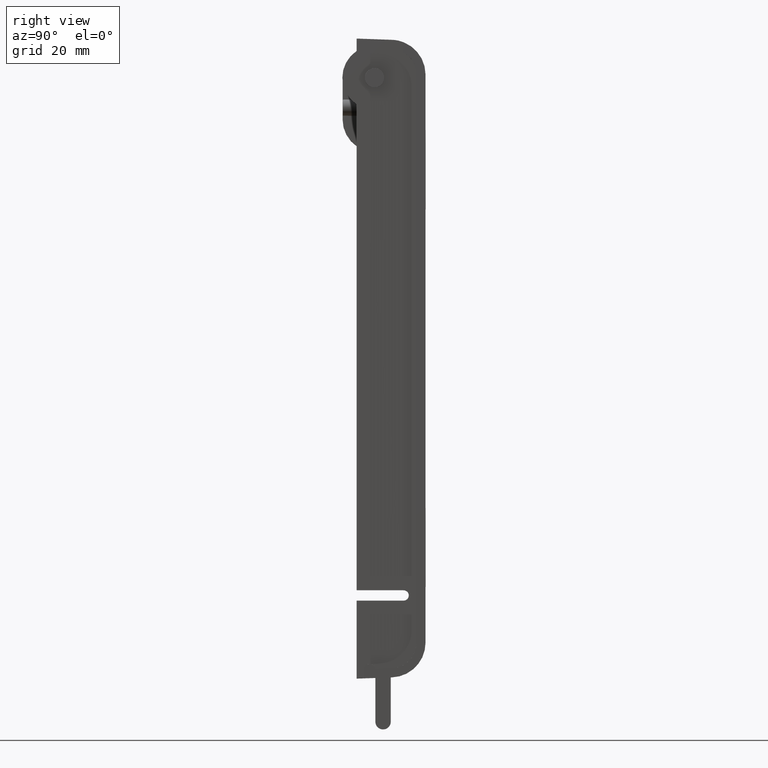
[diagram: clean part render]
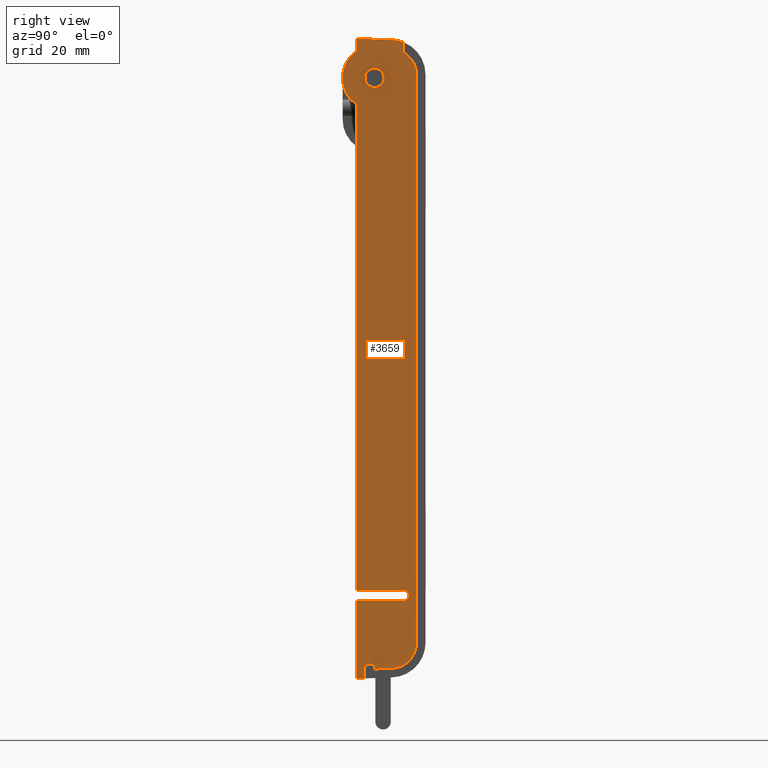
[diagram: same view with one face highlighted and labeled with its STEP entity id]
A machine part, right view. The second image highlights one B-rep face of the part: STEP entity #3659.
In plain terms, the highlighted planar face has unit normal (0.9998, -0.0175, 0).
Its self-contained STEP definition (entity closure, byte-faithful):
#2 = VERTEX_POINT ( 'NONE', #3571 ) ;
#30 = CARTESIAN_POINT ( 'NONE',  ( 0.7906335496072766100, -0.001603583615537076200, -2.486238610051884300 ) ) ;
#46 = EDGE_LOOP ( 'NONE', ( #967, #1067, #2667, #3278, #1493, #3880, #1706, #3228, #3984, #466, #817, #465, #2967, #718, #729, #2421, #161, #3970 ) ) ;
#57 = CARTESIAN_POINT ( 'NONE',  ( 0.7970326389622036700, 0.3649999999999999900, -1.799999999999999400 ) ) ;
#81 = CARTESIAN_POINT ( 'NONE',  ( 0.7954516091742254200, 0.2744228641096752600, 2.476599554097246500 ) ) ;
#118 = CARTESIAN_POINT ( 'NONE',  ( 0.7973965870131014500, 0.3858505698715440400, -2.402665744768424500 ) ) ;
#120 = CARTESIAN_POINT ( 'NONE',  ( 0.7987781454550249000, 0.4650000000000000200, -2.206764030802090400 ) ) ;
#149 = EDGE_CURVE ( 'NONE', #2, #869, #3125, .T. ) ;
#161 = ORIENTED_EDGE ( 'NONE', *, *, #2855, .T. ) ;
#229 = CARTESIAN_POINT ( 'NONE',  ( 0.7970326389622036700, 0.3649999999999999900, -1.799999999999999400 ) ) ;
#239 = LINE ( 'NONE', #1753, #1892 ) ;
#285 = CARTESIAN_POINT ( 'NONE',  ( 0.7906615402634036300, 0.0000000000000000000, -1.799999999999999800 ) ) ;
#300 = CARTESIAN_POINT ( 'NONE',  ( 0.7906615402634036300, 0.0000000000000000000, 2.486182611678085400 ) ) ;
#319 = VECTOR ( 'NONE', #1518, 39.37007874015748900 ) ;
#341 = CARTESIAN_POINT ( 'NONE',  ( 0.7931676610096630700, 0.1435755613952561500, -2.411126174493036300 ) ) ;
#439 = EDGE_CURVE ( 'NONE', #1929, #1929, #882, .T. ) ;
#465 = ORIENTED_EDGE ( 'NONE', *, *, #149, .F. ) ;
#466 = ORIENTED_EDGE ( 'NONE', *, *, #2839, .F. ) ;
#510 = VERTEX_POINT ( 'NONE', #1520 ) ;
#587 = DIRECTION ( 'NONE',  ( -2.127479283178113900E-018, -1.218832065035094400E-016, 1.000000000000000000 ) ) ;
#618 = VERTEX_POINT ( 'NONE', #3207 ) ;
#631 = PLANE ( 'NONE',  #1129 ) ;
#650 = VERTEX_POINT ( 'NONE', #1257 ) ;
#684 = VECTOR ( 'NONE', #587, 39.37007874015748100 ) ;
#704 = CARTESIAN_POINT ( 'NONE',  ( 0.8029608941900767700, 0.7046295145422341000, -2.391533738722755800 ) ) ;
#712 = EDGE_CURVE ( 'NONE', #618, #510, #3488, .T. ) ;
#713 = CARTESIAN_POINT ( 'NONE',  ( 0.7906615402634036300, 0.0000000000000000000, 2.467500000000000200 ) ) ;
#718 = ORIENTED_EDGE ( 'NONE', *, *, #837, .T. ) ;
#729 = ORIENTED_EDGE ( 'NONE', *, *, #3443, .T. ) ;
#737 = CARTESIAN_POINT ( 'NONE',  ( 0.7943900437205487800, 0.2136058199999999700, 2.181657750000000300 ) ) ;
#743 =( BOUNDED_CURVE ( )  B_SPLINE_CURVE ( 3, ( #57, #2038, #4014, #2369 ),
 .UNSPECIFIED., .F., .F. ) 
 B_SPLINE_CURVE_WITH_KNOTS ( ( 4, 4 ),
 ( 4.712388980384689700, 7.853981633974484600 ),
 .UNSPECIFIED. ) 
 CURVE ( )  GEOMETRIC_REPRESENTATION_ITEM ( )  RATIONAL_B_SPLINE_CURVE ( ( 1.000000000000000000, 0.3333333333333327600, 0.3333333333333327600, 1.000000000000000000 ) ) 
 REPRESENTATION_ITEM ( '' )  );
#771 = EDGE_CURVE ( 'NONE', #3141, #2486, #743, .T. ) ;
#804 =( BOUNDED_CURVE ( )  B_SPLINE_CURVE ( 3, ( #4069, #1097, #118, #2427 ),
 .UNSPECIFIED., .F., .F. ) 
 B_SPLINE_CURVE_WITH_KNOTS ( ( 4, 4 ),
 ( 0.0000000000000000000, 1.535889741755008800 ),
 .UNSPECIFIED. ) 
 CURVE ( )  GEOMETRIC_REPRESENTATION_ITEM ( )  RATIONAL_B_SPLINE_CURVE ( ( 1.000000000000000000, 0.8128932002257676100, 0.8128932002257676100, 1.000000000000000000 ) ) 
 REPRESENTATION_ITEM ( '' )  );
#817 = ORIENTED_EDGE ( 'NONE', *, *, #1605, .F. ) ;
#837 = EDGE_CURVE ( 'NONE', #3344, #2801, #239, .T. ) ;
#841 = CARTESIAN_POINT ( 'NONE',  ( 0.7916739340292402400, 0.05800000000000000300, -2.484157207047564200 ) ) ;
#869 = VERTEX_POINT ( 'NONE', #120 ) ;
#882 =( BOUNDED_CURVE ( )  B_SPLINE_CURVE ( 3, ( #737, #2693, #3032, #1072, #3372, #1402, #3716 ),
 .UNSPECIFIED., .T., .F. ) 
 B_SPLINE_CURVE_WITH_KNOTS ( ( 4, 3, 4 ),
 ( 0.0000000000000000000, 3.141592653589793100, 6.283185307179586200 ),
 .UNSPECIFIED. ) 
 CURVE ( )  GEOMETRIC_REPRESENTATION_ITEM ( )  RATIONAL_B_SPLINE_CURVE ( ( 1.000000000000000000, 0.3333333333333333700, 0.3333333333333333700, 1.000000000000000000, 0.3333333333333333700, 0.3333333333333333700, 1.000000000000000000 ) ) 
 REPRESENTATION_ITEM ( '' )  );
#912 = DIRECTION ( 'NONE',  ( 0.9998476951563912700, -0.01745240643728355000, 0.0000000000000000000 ) ) ;
#955 = LINE ( 'NONE', #1367, #1731 ) ;
#967 = ORIENTED_EDGE ( 'NONE', *, *, #4152, .T. ) ;
#970 = CARTESIAN_POINT ( 'NONE',  ( 0.8000000000000000400, 0.5350000000000000300, 2.467500000000000200 ) ) ;
#1036 = CARTESIAN_POINT ( 'NONE',  ( 0.7906615402634036300, 0.0000000000000000000, 2.467500000000000200 ) ) ;
#1039 = CARTESIAN_POINT ( 'NONE',  ( 0.7906615402634036300, 0.0000000000000000000, -1.880000000000000100 ) ) ;
#1059 = VECTOR ( 'NONE', #2672, 39.37007874015748100 ) ;
#1067 = ORIENTED_EDGE ( 'NONE', *, *, #3412, .T. ) ;
#1072 = CARTESIAN_POINT ( 'NONE',  ( 0.7917717839813162000, 0.06360581999999999300, 2.181657750000000300 ) ) ;
#1097 = CARTESIAN_POINT ( 'NONE',  ( 0.7987781454550249000, 0.4650000000000002500, -2.320704110551159400 ) ) ;
#1110 = VECTOR ( 'NONE', #1515, 39.37007874015748100 ) ;
#1129 = AXIS2_PLACEMENT_3D ( 'NONE', #970, #3941, #1973 ) ;
#1168 = VERTEX_POINT ( 'NONE', #285 ) ;
#1187 = VERTEX_POINT ( 'NONE', #300 ) ;
#1257 = CARTESIAN_POINT ( 'NONE',  ( 0.7906615402634036300, 0.0000000000000000000, 2.389702392549554000 ) ) ;
#1282 = VECTOR ( 'NONE', #1859, 39.37007874015748100 ) ;
#1297 = EDGE_CURVE ( 'NONE', #3344, #2, #2157, .T. ) ;
#1351 = CARTESIAN_POINT ( 'NONE',  ( 0.7987781454550247900, 0.4650000000000000200, 2.206764030802090400 ) ) ;
#1367 = CARTESIAN_POINT ( 'NONE',  ( 0.8000000000000000400, 0.5350000000000000300, -1.799999999999999800 ) ) ;
#1402 = CARTESIAN_POINT ( 'NONE',  ( 0.7943900437205487800, 0.2136058200000000000, 2.031657750000000400 ) ) ;
#1414 = DIRECTION ( 'NONE',  ( 0.0006091728678748124400, 0.03489949022704760800, 0.9993906415863165200 ) ) ;
#1493 = ORIENTED_EDGE ( 'NONE', *, *, #3076, .T. ) ;
#1510 = VERTEX_POINT ( 'NONE', #1832 ) ;
#1515 = DIRECTION ( 'NONE',  ( -0.0000000000000000000, -0.0000000000000000000, -1.000000000000000000 ) ) ;
#1518 = DIRECTION ( 'NONE',  ( -0.01744177813809451000, -0.9992388003036507500, 0.03489418781261580100 ) ) ;
#1520 = CARTESIAN_POINT ( 'NONE',  ( 0.7931676610096630700, 0.1435755613952561500, -2.411126174493036300 ) ) ;
#1545 = VERTEX_POINT ( 'NONE', #3820 ) ;
#1605 = EDGE_CURVE ( 'NONE', #869, #1510, #804, .T. ) ;
#1629 = VECTOR ( 'NONE', #2160, 39.37007874015748100 ) ;
#1706 = ORIENTED_EDGE ( 'NONE', *, *, #3200, .T. ) ;
#1713 = EDGE_CURVE ( 'NONE', #2486, #2419, #3949, .T. ) ;
#1731 = VECTOR ( 'NONE', #2019, 39.37007874015748100 ) ;
#1733 = CARTESIAN_POINT ( 'NONE',  ( 0.7965335660591879000, 0.3364081325353170400, 2.469029355010162500 ) ) ;
#1753 = CARTESIAN_POINT ( 'NONE',  ( 0.7969771459385223100, 0.3618208068025581800, 2.352100496732388200 ) ) ;
#1832 = CARTESIAN_POINT ( 'NONE',  ( 0.7954089670655620800, 0.2719798993405004900, -2.406642196205909500 ) ) ;
#1854 = CARTESIAN_POINT ( 'NONE',  ( 0.7969315316882382700, 0.3592075681539708700, 2.473638806990889000 ) ) ;
#1859 = DIRECTION ( 'NONE',  ( -0.0000000000000000000, -0.0000000000000000000, -1.000000000000000000 ) ) ;
#1892 = VECTOR ( 'NONE', #1414, 39.37007874015748100 ) ;
#1929 = VERTEX_POINT ( 'NONE', #2124 ) ;
#1943 = CARTESIAN_POINT ( 'NONE',  ( 0.7906615402634036300, 0.0000000000000000000, 1.973613107450446600 ) ) ;
#1973 = DIRECTION ( 'NONE',  ( 0.01745240643728355000, 0.9998476951563912700, 0.0000000000000000000 ) ) ;
#1995 = CARTESIAN_POINT ( 'NONE',  ( 0.7917276719524934900, 0.06107864356128384800, -2.339849056468578300 ) ) ;
#2019 = DIRECTION ( 'NONE',  ( 0.01745240643728355000, 0.9998476951563912700, -0.0000000000000000000 ) ) ;
#2038 = CARTESIAN_POINT ( 'NONE',  ( 0.7984290441564612100, 0.4450000000000004000, -1.799999999999999600 ) ) ;
#2058 = EDGE_CURVE ( 'NONE', #1545, #4028, #3472, .T. ) ;
#2064 = CARTESIAN_POINT ( 'NONE',  ( 0.7959983249226629800, 0.3057441883605876400, 2.475505789352904000 ) ) ;
#2124 = CARTESIAN_POINT ( 'NONE',  ( 0.7943900437205487800, 0.2136058199999999700, 2.181657750000000300 ) ) ;
#2157 =( BOUNDED_CURVE ( )  B_SPLINE_CURVE ( 3, ( #2984, #2653, #3315, #1351 ),
 .UNSPECIFIED., .F., .F. ) 
 B_SPLINE_CURVE_WITH_KNOTS ( ( 4, 4 ),
 ( 5.223543965205332800, 6.283185307179586200 ),
 .UNSPECIFIED. ) 
 CURVE ( )  GEOMETRIC_REPRESENTATION_ITEM ( )  RATIONAL_B_SPLINE_CURVE ( ( 1.000000000000000000, 0.9085984756239113800, 0.9085984756239113800, 1.000000000000000000 ) ) 
 REPRESENTATION_ITEM ( '' )  );
#2160 = DIRECTION ( 'NONE',  ( -0.01745240643728355000, -0.9998476951563912700, 7.483375123240618300E-016 ) ) ;
#2226 = DIRECTION ( 'NONE',  ( -0.01744177813809451000, -0.9992388003036507500, -0.03489418781261535000 ) ) ;
#2273 = VERTEX_POINT ( 'NONE', #1943 ) ;
#2326 = CARTESIAN_POINT ( 'NONE',  ( 0.7930242560388709400, 0.1353598961208986000, -2.337255097970385900 ) ) ;
#2351 = ORIENTED_EDGE ( 'NONE', *, *, #439, .F. ) ;
#2369 = CARTESIAN_POINT ( 'NONE',  ( 0.7970326389622031100, 0.3649999999999999400, -1.880000000000000300 ) ) ;
#2379 = DIRECTION ( 'NONE',  ( -0.0000000000000000000, -0.0000000000000000000, -1.000000000000000000 ) ) ;
#2419 = VERTEX_POINT ( 'NONE', #1039 ) ;
#2421 = ORIENTED_EDGE ( 'NONE', *, *, #4038, .T. ) ;
#2427 = CARTESIAN_POINT ( 'NONE',  ( 0.7954089670655620800, 0.2719798993405004900, -2.406642196205909500 ) ) ;
#2446 = LINE ( 'NONE', #713, #4096 ) ;
#2486 = VERTEX_POINT ( 'NONE', #3728 ) ;
#2489 = EDGE_LOOP ( 'NONE', ( #2351 ) ) ;
#2603 = VECTOR ( 'NONE', #2993, 39.37007874015748100 ) ;
#2642 = FACE_BOUND ( 'NONE', #2489, .T. ) ;
#2653 = CARTESIAN_POINT ( 'NONE',  ( 0.7981239283288745800, 0.4275199259446596000, 2.344920935994308400 ) ) ;
#2667 = ORIENTED_EDGE ( 'NONE', *, *, #771, .T. ) ;
#2672 = DIRECTION ( 'NONE',  ( -0.0000000000000000000, -0.0000000000000000000, -1.000000000000000000 ) ) ;
#2693 = CARTESIAN_POINT ( 'NONE',  ( 0.7943900437205487800, 0.2136058200000000000, 2.331657750000000200 ) ) ;
#2763 = EDGE_CURVE ( 'NONE', #650, #2273, #4006, .T. ) ;
#2801 = VERTEX_POINT ( 'NONE', #3624 ) ;
#2811 = LINE ( 'NONE', #1036, #1059 ) ;
#2839 = EDGE_CURVE ( 'NONE', #1510, #510, #3113, .T. ) ;
#2854 = LINE ( 'NONE', #1854, #319 ) ;
#2855 = EDGE_CURVE ( 'NONE', #1187, #650, #2811, .T. ) ;
#2858 = VECTOR ( 'NONE', #2226, 39.37007874015748100 ) ;
#2884 = CARTESIAN_POINT ( 'NONE',  ( 0.7930809138509324900, 0.1386058199999999900, 2.181657750000000300 ) ) ;
#2949 = LINE ( 'NONE', #3148, #1110 ) ;
#2967 = ORIENTED_EDGE ( 'NONE', *, *, #1297, .F. ) ;
#2984 = CARTESIAN_POINT ( 'NONE',  ( 0.7969948834043828500, 0.3628369855411390800, 2.381200048471099800 ) ) ;
#2993 = DIRECTION ( 'NONE',  ( 0.01744177813809451000, 0.9992388003036507500, 0.03489418781261748700 ) ) ;
#2999 = DIRECTION ( 'NONE',  ( -0.01744177813809451000, -0.9992388003036507500, -0.03489418781261535000 ) ) ;
#3032 = CARTESIAN_POINT ( 'NONE',  ( 0.7917717839813163100, 0.06360582000000000700, 2.331657750000000200 ) ) ;
#3076 = EDGE_CURVE ( 'NONE', #2419, #1545, #2949, .T. ) ;
#3113 = LINE ( 'NONE', #704, #3693 ) ;
#3118 = CARTESIAN_POINT ( 'NONE',  ( 0.8000000000000000400, 0.5349999999999967000, -1.880000000000000800 ) ) ;
#3125 = LINE ( 'NONE', #4161, #1282 ) ;
#3128 =( BOUNDED_CURVE ( )  B_SPLINE_CURVE ( 3, ( #4041, #1733, #2064, #81 ),
 .UNSPECIFIED., .F., .F. ) 
 B_SPLINE_CURVE_WITH_KNOTS ( ( 4, 4 ),
 ( 1.189407378322268900, 1.535889741755009900 ),
 .UNSPECIFIED. ) 
 CURVE ( )  GEOMETRIC_REPRESENTATION_ITEM ( )  RATIONAL_B_SPLINE_CURVE ( ( 1.000000000000000000, 0.9900208268173844600, 0.9900208268173844600, 1.000000000000000000 ) ) 
 REPRESENTATION_ITEM ( '' )  );
#3141 = VERTEX_POINT ( 'NONE', #229 ) ;
#3148 = CARTESIAN_POINT ( 'NONE',  ( 0.7906615402634036300, 0.0000000000000000000, 2.467500000000000200 ) ) ;
#3199 = CARTESIAN_POINT ( 'NONE',  ( 0.8029608941900767700, 0.7046295145422341000, -2.391533738722755800 ) ) ;
#3200 = EDGE_CURVE ( 'NONE', #4028, #3270, #3310, .T. ) ;
#3206 = DIRECTION ( 'NONE',  ( 0.01745240643728379600, 0.9998476951563912700, 0.0000000000000000000 ) ) ;
#3207 = CARTESIAN_POINT ( 'NONE',  ( 0.7916745620108882600, 0.05803597704451930700, -2.414113282600568200 ) ) ;
#3228 = ORIENTED_EDGE ( 'NONE', *, *, #3551, .F. ) ;
#3244 = CARTESIAN_POINT ( 'NONE',  ( 0.7916739340292402400, 0.05799999999999999600, -2.414114538946647000 ) ) ;
#3270 = VERTEX_POINT ( 'NONE', #3244 ) ;
#3278 = ORIENTED_EDGE ( 'NONE', *, *, #1713, .T. ) ;
#3296 = CARTESIAN_POINT ( 'NONE',  ( 0.7969948834043828500, 0.3628369855411390800, 2.381200048471099800 ) ) ;
#3310 = LINE ( 'NONE', #4211, #684 ) ;
#3315 = CARTESIAN_POINT ( 'NONE',  ( 0.7987781454550249000, 0.4650000000000000800, 2.280926398491836900 ) ) ;
#3344 = VERTEX_POINT ( 'NONE', #3296 ) ;
#3372 = CARTESIAN_POINT ( 'NONE',  ( 0.7917717839813163100, 0.06360581999999999300, 2.031657750000000400 ) ) ;
#3412 = EDGE_CURVE ( 'NONE', #1168, #3141, #955, .T. ) ;
#3418 = FACE_OUTER_BOUND ( 'NONE', #46, .T. ) ;
#3443 = EDGE_CURVE ( 'NONE', #2801, #3971, #3128, .T. ) ;
#3472 = LINE ( 'NONE', #30, #2603 ) ;
#3488 =( BOUNDED_CURVE ( )  B_SPLINE_CURVE ( 3, ( #3559, #1995, #2326, #341 ),
 .UNSPECIFIED., .F., .F. ) 
 B_SPLINE_CURVE_WITH_KNOTS ( ( 4, 4 ),
 ( 3.182540575704184700, 6.172424214985421800 ),
 .UNSPECIFIED. ) 
 CURVE ( )  GEOMETRIC_REPRESENTATION_ITEM ( )  RATIONAL_B_SPLINE_CURVE ( ( 1.000000000000000000, 0.3838545231947390600, 0.3838545231947390600, 1.000000000000000000 ) ) 
 REPRESENTATION_ITEM ( '' )  );
#3519 = AXIS2_PLACEMENT_3D ( 'NONE', #2884, #912, #3206 ) ;
#3551 = EDGE_CURVE ( 'NONE', #618, #3270, #3842, .T. ) ;
#3559 = CARTESIAN_POINT ( 'NONE',  ( 0.7916745620108882600, 0.05803597704451930700, -2.414113282600568200 ) ) ;
#3571 = CARTESIAN_POINT ( 'NONE',  ( 0.7987781454550247900, 0.4650000000000000200, 2.206764030802090400 ) ) ;
#3624 = CARTESIAN_POINT ( 'NONE',  ( 0.7970413087918132300, 0.3654966942057185600, 2.457364139448759300 ) ) ;
#3659 = ADVANCED_FACE ( 'NONE', ( #3418, #2642 ), #631, .T. ) ;
#3693 = VECTOR ( 'NONE', #2999, 39.37007874015748100 ) ;
#3716 = CARTESIAN_POINT ( 'NONE',  ( 0.7943900437205487800, 0.2136058199999999700, 2.181657750000000300 ) ) ;
#3728 = CARTESIAN_POINT ( 'NONE',  ( 0.7970326389622031100, 0.3649999999999999400, -1.880000000000000300 ) ) ;
#3820 = CARTESIAN_POINT ( 'NONE',  ( 0.7906615402634036300, -6.634601186373351400E-033, -2.486182611678085400 ) ) ;
#3842 = LINE ( 'NONE', #3199, #2858 ) ;
#3880 = ORIENTED_EDGE ( 'NONE', *, *, #2058, .T. ) ;
#3941 = DIRECTION ( 'NONE',  ( 0.9998476951563912700, -0.01745240643728355000, 0.0000000000000000000 ) ) ;
#3949 = LINE ( 'NONE', #3118, #1629 ) ;
#3970 = ORIENTED_EDGE ( 'NONE', *, *, #2763, .T. ) ;
#3971 = VERTEX_POINT ( 'NONE', #4115 ) ;
#3984 = ORIENTED_EDGE ( 'NONE', *, *, #712, .T. ) ;
#4006 = CIRCLE ( 'NONE', #3519, 0.2500000000000001100 ) ;
#4014 = CARTESIAN_POINT ( 'NONE',  ( 0.7984290441564612100, 0.4450000000000002800, -1.880000000000000100 ) ) ;
#4028 = VERTEX_POINT ( 'NONE', #841 ) ;
#4038 = EDGE_CURVE ( 'NONE', #3971, #1187, #2854, .T. ) ;
#4041 = CARTESIAN_POINT ( 'NONE',  ( 0.7970413087918132300, 0.3654966942057185600, 2.457364139448759300 ) ) ;
#4069 = CARTESIAN_POINT ( 'NONE',  ( 0.7987781454550249000, 0.4650000000000000200, -2.206764030802090400 ) ) ;
#4096 = VECTOR ( 'NONE', #2379, 39.37007874015748100 ) ;
#4115 = CARTESIAN_POINT ( 'NONE',  ( 0.7954516091742254200, 0.2744228641096752600, 2.476599554097246500 ) ) ;
#4152 = EDGE_CURVE ( 'NONE', #2273, #1168, #2446, .T. ) ;
#4161 = CARTESIAN_POINT ( 'NONE',  ( 0.7987781454550247900, 0.4650000000000000200, 2.467500000000000200 ) ) ;
#4211 = CARTESIAN_POINT ( 'NONE',  ( 0.7916739340292402400, 0.05800000000000000300, -2.484157207047564200 ) ) ;